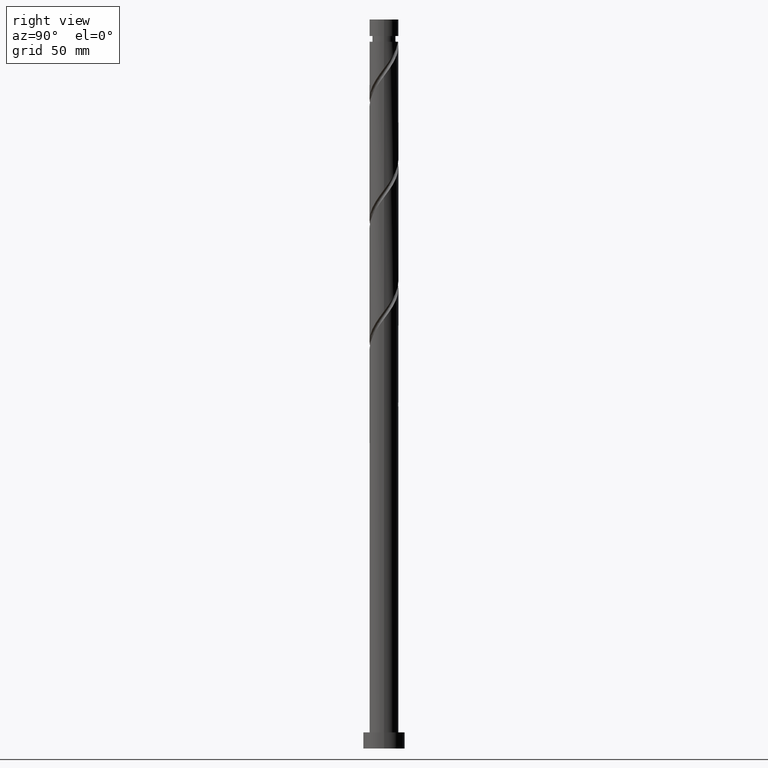
[diagram: clean part render]
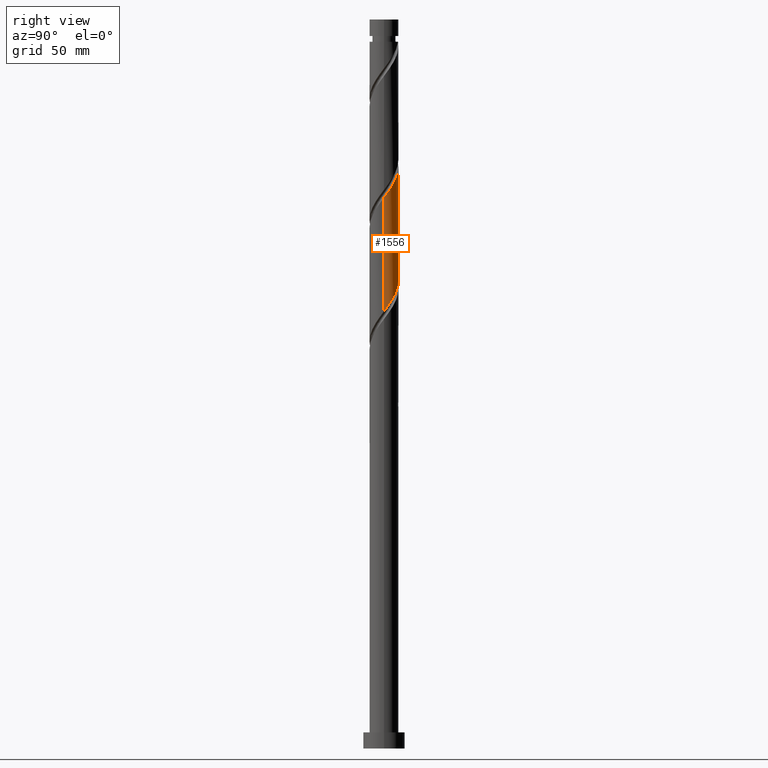
[diagram: same view with one face highlighted and labeled with its STEP entity id]
A machine part, right view. The second image highlights one B-rep face of the part: STEP entity #1556.
In plain terms, the highlighted cylindrical surface (edge-blend (fillet) strip) has radius 6.25 mm, axis along (-0, -0, -1).
Its self-contained STEP definition (entity closure, byte-faithful):
#3 = LINE ( 'NONE', #122, #411 ) ;
#57 = LINE ( 'NONE', #347, #1871 ) ;
#91 = CARTESIAN_POINT ( 'NONE',  ( -6.250000000000001776, 1.634372200607126649E-15, 215.1795361703167657 ) ) ;
#111 = CARTESIAN_POINT ( 'NONE',  ( 4.553108168431573510, 4.339079616700646902, 244.4425190924106914 ) ) ;
#122 = CARTESIAN_POINT ( 'NONE',  ( -6.250000000000000000, 0.000000000000000000, 315.0000000000000000 ) ) ;
#138 = CARTESIAN_POINT ( 'NONE',  ( -6.250000000000000000, 0.6281486345370181912, 214.3412650913532218 ) ) ;
#148 = CARTESIAN_POINT ( 'NONE',  ( 3.778103783078897937, 4.978798228918796198, 196.6300190924107483 ) ) ;
#220 = CARTESIAN_POINT ( 'NONE',  ( -6.058070402885848971, 1.536972021111194353, 262.2550190924108620 ) ) ;
#224 = EDGE_LOOP ( 'NONE', ( #731, #1182, #933, #1368 ) ) ;
#227 = CARTESIAN_POINT ( 'NONE',  ( 6.250000000000001776, -2.291106235554282619E-15, 188.9295361703167941 ) ) ;
#253 = CARTESIAN_POINT ( 'NONE',  ( -6.231245559048660176, 0.8543914186961956148, 263.1925190924106914 ) ) ;
#288 = VERTEX_POINT ( 'NONE', #1009 ) ;
#289 = CARTESIAN_POINT ( 'NONE',  ( -3.217127949457153413, 5.404488289406035761, 255.6925190924107483 ) ) ;
#292 = CARTESIAN_POINT ( 'NONE',  ( 6.250000000000001776, 0.07520560728992942146, 189.0298988585419124 ) ) ;
#311 = EDGE_CURVE ( 'NONE', #288, #1888, #3, .T. ) ;
#337 = EDGE_CURVE ( 'NONE', #1800, #288, #1835, .T. ) ;
#347 = CARTESIAN_POINT ( 'NONE',  ( 6.250000000000000000, 7.654042494670957606E-16, 315.0000000000000000 ) ) ;
#399 = CARTESIAN_POINT ( 'NONE',  ( -6.250000000000009770, 9.851010524207275462E-16, 264.3305020145047024 ) ) ;
#401 = CARTESIAN_POINT ( 'NONE',  ( -2.219552623526188651, 5.884895246723026219, 205.0675190924107483 ) ) ;
#411 = VECTOR ( 'NONE', #739, 1000.000000000000000 ) ;
#412 = CARTESIAN_POINT ( 'NONE',  ( 4.013262180099769871, 4.791265665122420359, 245.3800190924107767 ) ) ;
#426 = CARTESIAN_POINT ( 'NONE',  ( 6.058070402885840977, 1.536972021111189912, 191.0050190924107198 ) ) ;
#438 = CARTESIAN_POINT ( 'NONE',  ( -4.013262180099762766, 4.791265665122413253, 207.8800190924107483 ) ) ;
#468 = DIRECTION ( 'NONE',  ( -0.000000000000000000, -0.000000000000000000, -1.000000000000000000 ) ) ;
#522 = DIRECTION ( 'NONE',  ( -0.000000000000000000, -0.000000000000000000, -1.000000000000000000 ) ) ;
#550 = CARTESIAN_POINT ( 'NONE',  ( -4.553108168431563740, 4.339079616700646014, 208.8175190924106630 ) ) ;
#571 = CARTESIAN_POINT ( 'NONE',  ( 2.219552623526193980, 5.884895246723031548, 248.1925190924106630 ) ) ;
#574 = CARTESIAN_POINT ( 'NONE',  ( 2.575492001364304784, 5.694676544888962688, 198.5050190924108051 ) ) ;
#576 = VERTEX_POINT ( 'NONE', #227 ) ;
#584 = CARTESIAN_POINT ( 'NONE',  ( 5.564173480133604244, 2.846484407647072334, 192.8800190924107767 ) ) ;
#592 = CARTESIAN_POINT ( 'NONE',  ( -2.575492001364306116, 5.694676544888975123, 254.7550190924107767 ) ) ;
#601 = EDGE_CURVE ( 'NONE', #1800, #576, #57, .T. ) ;
#625 =( BOUNDED_CURVE ( )  B_SPLINE_CURVE ( 2, ( #1630, #138, #1147, #1319, #1921, #732, #1882, #550, #438, #1738, #1450, #401, #1896, #707, #1486, #999, #1307, #1909, #574, #1748, #148, #1171, #1762, #1332, #584, #1022, #426, #1183, #1772, #292, #892 ),
 .UNSPECIFIED., .F., .T. ) 
 B_SPLINE_CURVE_WITH_KNOTS ( ( 3, 2, 2, 2, 2, 2, 2, 2, 2, 2, 2, 2, 2, 2, 2, 3 ),
 ( 0.6795303401299221946, 0.6875000000000000000, 0.6964285714285713969, 0.7053571428571429047, 0.7142857142857143016, 0.7232142857142856984, 0.7321428571428570953, 0.7410714285714286031, 0.7500000000000000000, 0.7589285714285713969, 0.7678571428571429047, 0.7767857142857143016, 0.7857142857142856984, 0.7946428571428570953, 0.8035714285714286031, 0.8045303401299221946 ),
 .UNSPECIFIED. ) 
 CURVE ( )  GEOMETRIC_REPRESENTATION_ITEM ( )  RATIONAL_B_SPLINE_CURVE ( ( 0.9079949616361964182, 0.9039886423360596890, 0.9090909090909264911, 0.9033747362666013636, 0.9090909090909264911, 0.9033747362666013636, 0.9090909090909264911, 0.9033747362666013636, 0.9090909090909264911, 0.9033747362666013636, 0.9090909090909264911, 0.9033747362666013636, 0.9090909090909264911, 0.9033747362666013636, 0.9090909090909264911, 0.9033747362666013636, 0.9090909090909264911, 0.9033747362666013636, 0.9090909090909264911, 0.9033747362666013636, 0.9090909090909264911, 0.9033747362666013636, 0.9090909090909264911, 0.9033747362666013636, 0.9090909090909264911, 0.9033747362666013636, 0.9090909090909264911, 0.9033747362666013636, 0.9090909090909264911, 0.9084770030214681658, 0.9079949616361964182 ) ) 
 REPRESENTATION_ITEM ( '' )  );
#627 = CARTESIAN_POINT ( 'NONE',  ( 0.000000000000000000, 0.000000000000000000, 315.0000000000000000 ) ) ;
#704 = CARTESIAN_POINT ( 'NONE',  ( -0.5536125394950951462, 6.265135199628107721, 251.9425190924106630 ) ) ;
#707 = CARTESIAN_POINT ( 'NONE',  ( -0.8543914186961930612, 6.231245559048653071, 203.1925190924107198 ) ) ;
#726 = CARTESIAN_POINT ( 'NONE',  ( -1.933856053271459041, 5.984864800371907378, 253.8175190924107483 ) ) ;
#731 = ORIENTED_EDGE ( 'NONE', *, *, #337, .F. ) ;
#732 = CARTESIAN_POINT ( 'NONE',  ( -5.404488289406027768, 3.217127949457149860, 210.6925190924107767 ) ) ;
#739 = DIRECTION ( 'NONE',  ( -0.000000000000000000, -0.000000000000000000, -1.000000000000000000 ) ) ;
#853 = CARTESIAN_POINT ( 'NONE',  ( 5.984864800371907378, 1.933856053271457931, 240.6925190924107198 ) ) ;
#892 = CARTESIAN_POINT ( 'NONE',  ( 6.250000000000001776, -2.291106235554282619E-15, 188.9295361703167941 ) ) ;
#908 = FACE_OUTER_BOUND ( 'NONE', #224, .T. ) ;
#919 = CYLINDRICAL_SURFACE ( 'NONE', #1908, 6.250000000000000000 ) ;
#933 = ORIENTED_EDGE ( 'NONE', *, *, #1459, .F. ) ;
#960 = CARTESIAN_POINT ( 'NONE',  ( -1.243734296383276483, 6.125000000000010658, 252.8800190924108051 ) ) ;
#999 = CARTESIAN_POINT ( 'NONE',  ( 0.5536125394950969225, 6.265135199628102392, 201.3175190924107767 ) ) ;
#1009 = CARTESIAN_POINT ( 'NONE',  ( -6.250000000000010658, 9.851010524207275462E-16, 264.3305020145047024 ) ) ;
#1022 = CARTESIAN_POINT ( 'NONE',  ( 5.884895246723026219, 2.219552623526187318, 191.9425190924107767 ) ) ;
#1147 = CARTESIAN_POINT ( 'NONE',  ( -6.125000000000000888, 1.243734296383277149, 213.5050190924108051 ) ) ;
#1157 = CARTESIAN_POINT ( 'NONE',  ( 6.250000000000011546, -8.955464112915705862E-16, 238.0805020145046740 ) ) ;
#1169 = CARTESIAN_POINT ( 'NONE',  ( -6.248190379338386613, 0.1503894396005495959, 264.1300190924108051 ) ) ;
#1171 = CARTESIAN_POINT ( 'NONE',  ( 4.339079616700646014, 4.553108168431562852, 195.6925190924107767 ) ) ;
#1182 = ORIENTED_EDGE ( 'NONE', *, *, #601, .T. ) ;
#1183 = CARTESIAN_POINT ( 'NONE',  ( 6.231245559048651295, 0.8543914186961918400, 190.0675190924108051 ) ) ;
#1193 = CARTESIAN_POINT ( 'NONE',  ( -3.778103783078902378, 4.978798228918804192, 256.6300190924107483 ) ) ;
#1295 = CARTESIAN_POINT ( 'NONE',  ( 5.694676544888975123, 2.575492001364305672, 241.6300190924108335 ) ) ;
#1305 = CARTESIAN_POINT ( 'NONE',  ( -4.339079616700648678, 4.553108168431573510, 257.5675190924107483 ) ) ;
#1307 = CARTESIAN_POINT ( 'NONE',  ( 1.243734296383278259, 6.125000000000000888, 200.3800190924107767 ) ) ;
#1315 = CARTESIAN_POINT ( 'NONE',  ( 1.536972021111196129, 6.058070402885848971, 249.1300190924107767 ) ) ;
#1319 = CARTESIAN_POINT ( 'NONE',  ( -5.984864800371902049, 1.933856053271457931, 212.5675190924107198 ) ) ;
#1328 = CARTESIAN_POINT ( 'NONE',  ( 6.125000000000010658, 1.243734296383277149, 239.7550190924107767 ) ) ;
#1332 = CARTESIAN_POINT ( 'NONE',  ( 5.243451713544184045, 3.473416191767958683, 193.8175190924107767 ) ) ;
#1340 = CARTESIAN_POINT ( 'NONE',  ( 4.978798228918805080, 3.778103783078901490, 243.5050190924107767 ) ) ;
#1368 = ORIENTED_EDGE ( 'NONE', *, *, #311, .F. ) ;
#1448 = CARTESIAN_POINT ( 'NONE',  ( 6.250000000000003553, 0.6281486345370339563, 238.9187730934683032 ) ) ;
#1450 = CARTESIAN_POINT ( 'NONE',  ( -2.846484407647073223, 5.564173480133604244, 206.0050190924107483 ) ) ;
#1459 = EDGE_CURVE ( 'NONE', #1888, #576, #625, .T. ) ;
#1460 = CARTESIAN_POINT ( 'NONE',  ( -5.564173480133613126, 2.846484407647079884, 260.3800190924108051 ) ) ;
#1482 = CARTESIAN_POINT ( 'NONE',  ( 5.404488289406035761, 3.217127949457151637, 242.5675190924106630 ) ) ;
#1486 = CARTESIAN_POINT ( 'NONE',  ( -0.1503894396005480971, 6.248190379338377731, 202.2550190924108051 ) ) ;
#1556 = ADVANCED_FACE ( 'NONE', ( #908 ), #919, .T. ) ;
#1561 = CARTESIAN_POINT ( 'NONE',  ( -5.243451713544189374, 3.473416191767964900, 259.4425190924106914 ) ) ;
#1594 = CARTESIAN_POINT ( 'NONE',  ( -5.884895246723031548, 2.219552623526192647, 261.3175190924106914 ) ) ;
#1605 = CARTESIAN_POINT ( 'NONE',  ( 0.1503894396005508449, 6.248190379338386613, 251.0050190924108051 ) ) ;
#1626 = CARTESIAN_POINT ( 'NONE',  ( 3.473416191767966232, 5.243451713544187598, 246.3175190924107198 ) ) ;
#1630 = CARTESIAN_POINT ( 'NONE',  ( -6.250000000000001776, 1.634372200607126846E-15, 215.1795361703167657 ) ) ;
#1661 = DIRECTION ( 'NONE',  ( -1.000000000000000000, 0.000000000000000000, 0.000000000000000000 ) ) ;
#1698 = CARTESIAN_POINT ( 'NONE',  ( 6.250000000000011546, -8.955464112915705862E-16, 238.0805020145047024 ) ) ;
#1738 = CARTESIAN_POINT ( 'NONE',  ( -3.473416191767960459, 5.243451713544183157, 206.9425190924108051 ) ) ;
#1748 = CARTESIAN_POINT ( 'NONE',  ( 3.217127949457151193, 5.404488289406027768, 197.5675190924107198 ) ) ;
#1758 = CARTESIAN_POINT ( 'NONE',  ( -6.250000000000010658, 0.07520560728995799582, 264.2301393262796410 ) ) ;
#1762 = CARTESIAN_POINT ( 'NONE',  ( 4.791265665122413253, 4.013262180099761878, 194.7550190924107198 ) ) ;
#1772 = CARTESIAN_POINT ( 'NONE',  ( 6.248190379338377731, 0.1503894396005470424, 189.1300190924107767 ) ) ;
#1780 = CARTESIAN_POINT ( 'NONE',  ( -4.791265665122421247, 4.013262180099768983, 258.5050190924108051 ) ) ;
#1800 = VERTEX_POINT ( 'NONE', #1698 ) ;
#1835 =( BOUNDED_CURVE ( )  B_SPLINE_CURVE ( 2, ( #1157, #1448, #1328, #853, #1295, #1482, #1340, #111, #412, #1626, #1893, #571, #1315, #1904, #1605, #704, #960, #726, #592, #289, #1193, #1305, #1780, #1561, #1460, #1594, #220, #253, #1169, #1758, #399 ),
 .UNSPECIFIED., .F., .T. ) 
 B_SPLINE_CURVE_WITH_KNOTS ( ( 3, 2, 2, 2, 2, 2, 2, 2, 2, 2, 2, 2, 2, 2, 2, 3 ),
 ( 0.4295303401299224166, 0.4375000000000000000, 0.4464285714285713969, 0.4553571428571429047, 0.4642857142857143016, 0.4732142857142856984, 0.4821428571428570953, 0.4910714285714286031, 0.5000000000000000000, 0.5089285714285713969, 0.5178571428571427937, 0.5267857142857143016, 0.5357142857142856984, 0.5446428571428572063, 0.5535714285714286031, 0.5545303401299218615 ),
 .UNSPECIFIED. ) 
 CURVE ( )  GEOMETRIC_REPRESENTATION_ITEM ( )  RATIONAL_B_SPLINE_CURVE ( ( 0.9079949616362019693, 0.9039886423360659062, 0.9090909090909321533, 0.9033747362666073588, 0.9090909090909321533, 0.9033747362666073588, 0.9090909090909321533, 0.9033747362666073588, 0.9090909090909321533, 0.9033747362666073588, 0.9090909090909321533, 0.9033747362666073588, 0.9090909090909321533, 0.9033747362666073588, 0.9090909090909321533, 0.9033747362666073588, 0.9090909090909321533, 0.9033747362666073588, 0.9090909090909321533, 0.9033747362666073588, 0.9090909090909321533, 0.9033747362666073588, 0.9090909090909321533, 0.9033747362666073588, 0.9090909090909321533, 0.9033747362666073588, 0.9090909090909321533, 0.9033747362666073588, 0.9090909090909321533, 0.9084770030214741610, 0.9079949616362025244 ) ) 
 REPRESENTATION_ITEM ( '' )  );
#1871 = VECTOR ( 'NONE', #522, 1000.000000000000000 ) ;
#1882 = CARTESIAN_POINT ( 'NONE',  ( -4.978798228918796198, 3.778103783078897049, 209.7550190924107198 ) ) ;
#1888 = VERTEX_POINT ( 'NONE', #91 ) ;
#1893 = CARTESIAN_POINT ( 'NONE',  ( 2.846484407647080328, 5.564173480133612237, 247.2550190924108335 ) ) ;
#1896 = CARTESIAN_POINT ( 'NONE',  ( -1.536972021111190800, 6.058070402885839201, 204.1300190924107767 ) ) ;
#1904 = CARTESIAN_POINT ( 'NONE',  ( 0.8543914186961968360, 6.231245559048660176, 250.0675190924107483 ) ) ;
#1908 = AXIS2_PLACEMENT_3D ( 'NONE', #627, #468, #1661 ) ;
#1909 = CARTESIAN_POINT ( 'NONE',  ( 1.933856053271459263, 5.984864800371902049, 199.4425190924107767 ) ) ;
#1921 = CARTESIAN_POINT ( 'NONE',  ( -5.694676544888964465, 2.575492001364303896, 211.6300190924107767 ) ) ;